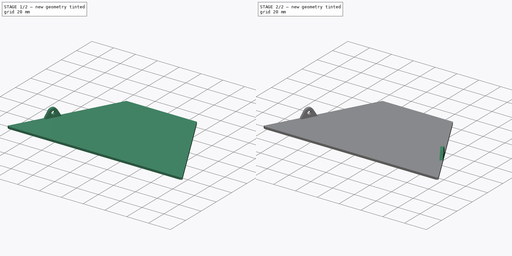
[diagram: build sequence overview — one tinted view per stage of 2, left to right]
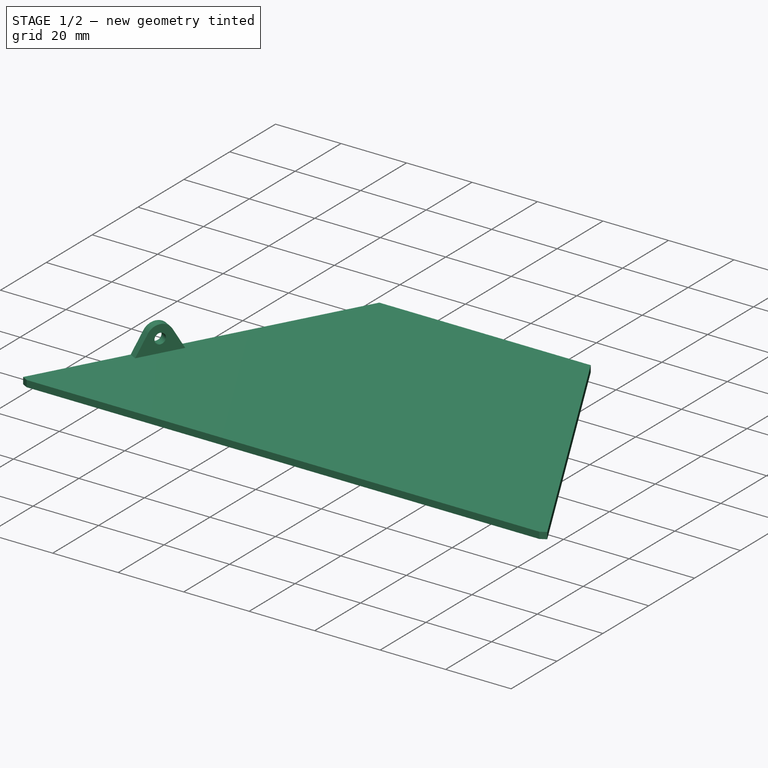
[diagram: stage 1 of 2 — iso view after this stage's code; geometry added in this stage tinted green]
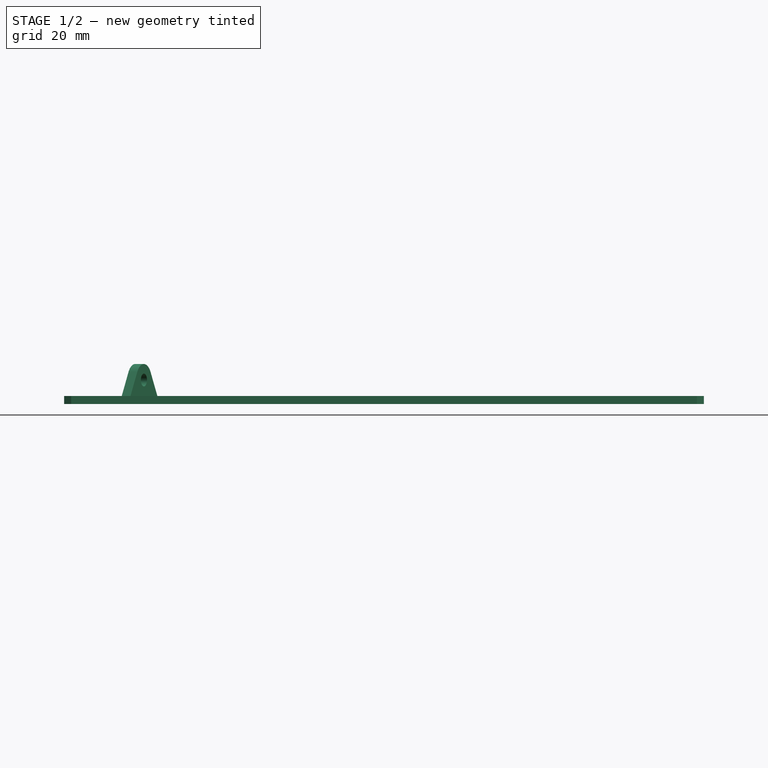
[diagram: stage 1 of 2 — front view after this stage's code; geometry added in this stage tinted green]
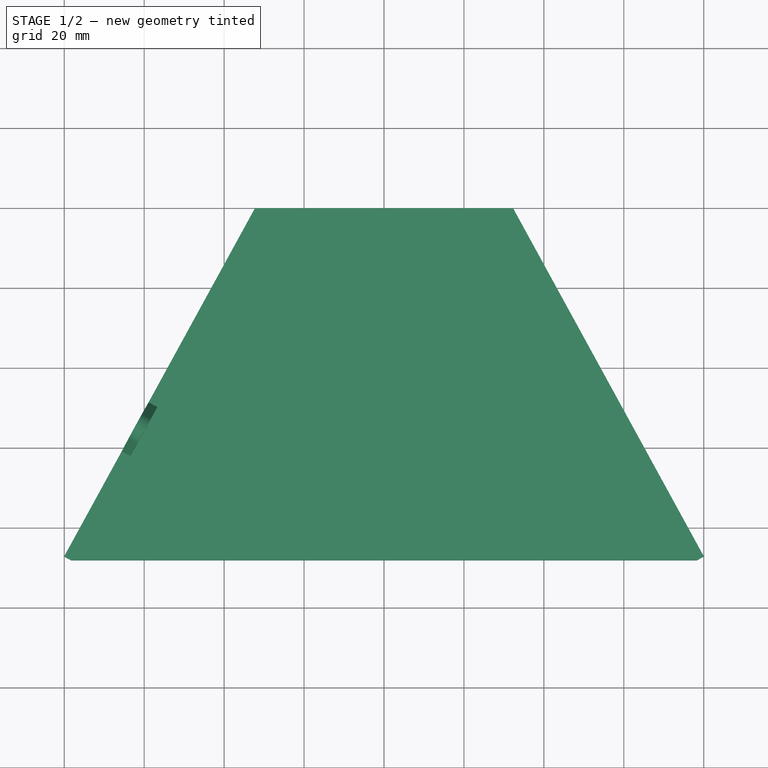
[diagram: stage 1 of 2 — top view after this stage's code; geometry added in this stage tinted green]
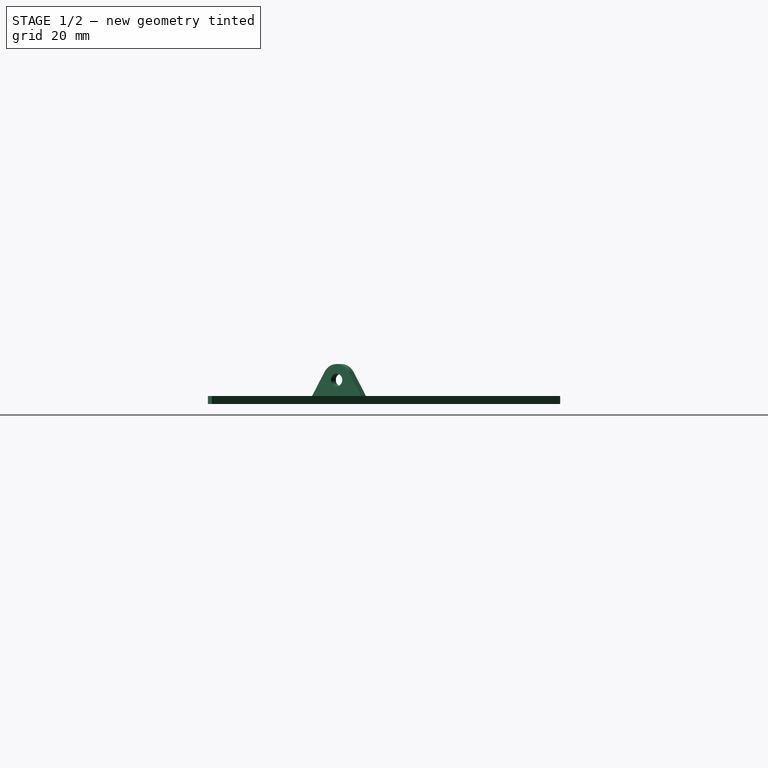
[diagram: stage 1 of 2 — right view after this stage's code; geometry added in this stage tinted green]
FCSTD DOCUMENT  (FreeCAD 0.21R33668 +26 (Git))
Label: 0_Base_Door
License: All rights reserved
LicenseURL: https://en.wikipedia.org/wiki/All_rights_reserved
objects: Sketcher::SketchObject×2, PartDesign::Pad×2, PartDesign::Mirrored×1, PartDesign::Body×1
note: 8 computed .brp shape members not serialized (recipe doc carries the construction recipe); baked Part::Feature solids carry a one-line shape summary decoded from their .brp

FEATURE [Sketcher::SketchObject] Sketch
  FullyConstrained = true
  MapMode = 5
  Support = -> [XY_Plane]
  sketch-geometry (11):
    g0: LineSegment StartX=-30 StartY=0 StartZ=0 EndX=30 EndY=0 EndZ=0
    g1: LineSegment StartX=30 StartY=0 StartZ=0 EndX=85 EndY=-100.4 EndZ=0
    g2: LineSegment StartX=85 StartY=-100.4 StartZ=0 EndX=-85 EndY=-100.4 EndZ=0
    g3: LineSegment StartX=-85 StartY=-100.4 StartZ=0 EndX=-30 EndY=0 EndZ=0
    g4: LineSegment StartX=-80.0279 StartY=-87.1607 StartZ=0 EndX=-32.2804 EndY=0 EndZ=0
    g5: LineSegment StartX=-32.2804 StartY=0 StartZ=0 EndX=-30 EndY=0 EndZ=0
    g6: LineSegment StartX=30 StartY=0 StartZ=0 EndX=32.2804 EndY=0 EndZ=0
    g7: LineSegment StartX=32.2804 StartY=0 StartZ=0 EndX=80.0279 EndY=-87.1607 EndZ=0
    g8: LineSegment StartX=-80.0279 StartY=-87.1607 StartZ=0 EndX=-78.2738 EndY=-88.1216 EndZ=0
    g9: LineSegment StartX=80.0279 StartY=-87.1607 StartZ=0 EndX=78.2738 EndY=-88.1216 EndZ=0
    g10: LineSegment StartX=78.2738 StartY=-88.1216 StartZ=0 EndX=-78.2738 EndY=-88.1216 EndZ=0
  constraints (29):
    c: Coincident(g1,g0)
    c: Coincident(g2,g1)
    c: Coincident(g3,g2)
    c: Coincident(g3,g0)
    c: Symmetric(g2,g1,g-2)
    c: DistanceX(g0,g0) = 60
    c: DistanceY(g2,g0) = 100.4
    c: DistanceX(g2,g2) = 170
    c: Equal(g3,g1)
    c: PointOnObject(g-1,g0)
    c: Horizontal(g0)
    c: PointOnObject(g4,g-1)
    c: Coincident(g5,g0)
    c: Coincident(g5,g4)
    c: Coincident(g6,g0)
    c: Symmetric(g4,g6,g-2)
    c: Coincident(g7,g6)
    c: Symmetric(g7,g4,g-2)
    c: Coincident(g8,g4)
    c: PointOnObject(g8,g3)
    c: Coincident(g9,g7)
    c: PointOnObject(g9,g1)
    c: Coincident(g10,g8)
    c: Horizontal(g10)
    c: Perpendicular(g8,g3)
    c: Perpendicular(g4,g8)
    c: Distance(g8,g2) = 14
    c: Distance(g8) = 2
    c: Coincident(g10,g9)
FEATURE [PartDesign::Pad] Pad
  Direction = (0,0,1)
  Length = 2
  Length2 = 10
  Profile = -> Sketch
  ReferenceAxis = -> Sketch [N_Axis]
  Type = 0
FEATURE [Sketcher::SketchObject] Sketch001  label="Bracket sketch"
  ExternalGeometry = -> [Pad]
  FullyConstrained = true
  MapMode = 5
  Placement = pos=(-24.8293,13.6017,0) rot=(-0.386367,0.652197,0.652197;3.87899rad)
  Support = -> [Pad]
  sketch-geometry (5):
    g0: LineSegment StartX=84.891 StartY=2 StartZ=0 EndX=70.891 EndY=2 EndZ=0
    g1: LineSegment StartX=84.891 StartY=2 StartZ=0 EndX=81.3372 EndY=8.03077 EndZ=0
    g2: LineSegment StartX=70.891 StartY=2 StartZ=0 EndX=74.4449 EndY=8.03077 EndZ=0
    g3: ArcOfCircle CenterX=77.891 CenterY=6 CenterZ=0 NormalX=0 NormalY=0 NormalZ=1 AngleXU=0 Radius=4 StartAngle=0.532504 EndAngle=2.60909
    g4: Circle CenterX=77.891 CenterY=6 CenterZ=0 NormalX=0 NormalY=0 NormalZ=1 AngleXU=0 Radius=1.6
  constraints (13):
    c: Horizontal(g0)
    c: DistanceX(g0,g0) = 14
    c: Coincident(g1,g0)
    c: Coincident(g2,g0)
    c: Tangent(g3,g2) = 1.5708
    c: Tangent(g3,g1) = -1.5708
    c: DistanceY(g0,g3) = 4
    c: Radius(g3) = 4
    c: Horizontal(g2,g1)
    c: Diameter(g4) = 3.2
    c: Coincident(g4,g3)
    c: DistanceX(g0,g-3) = 30
    c: PointOnObject(g0,g-3)
FEATURE [PartDesign::Pad] Pad001  label="Left bracket"
  BaseFeature = -> Pad
  Direction = (-0.877026,0.480443,2e-16)
  Length = 2.5
  Length2 = 10
  Profile = -> Sketch001
  ReferenceAxis = -> Sketch001 [N_Axis]
  Reversed = true
  Type = 0
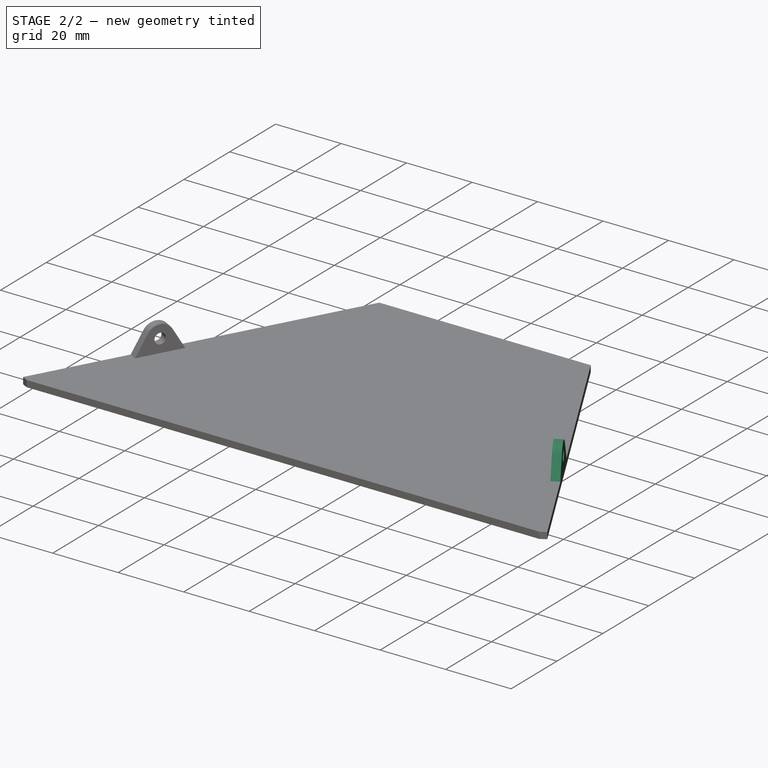
[diagram: stage 2 of 2 — iso view after this stage's code; geometry added in this stage tinted green]
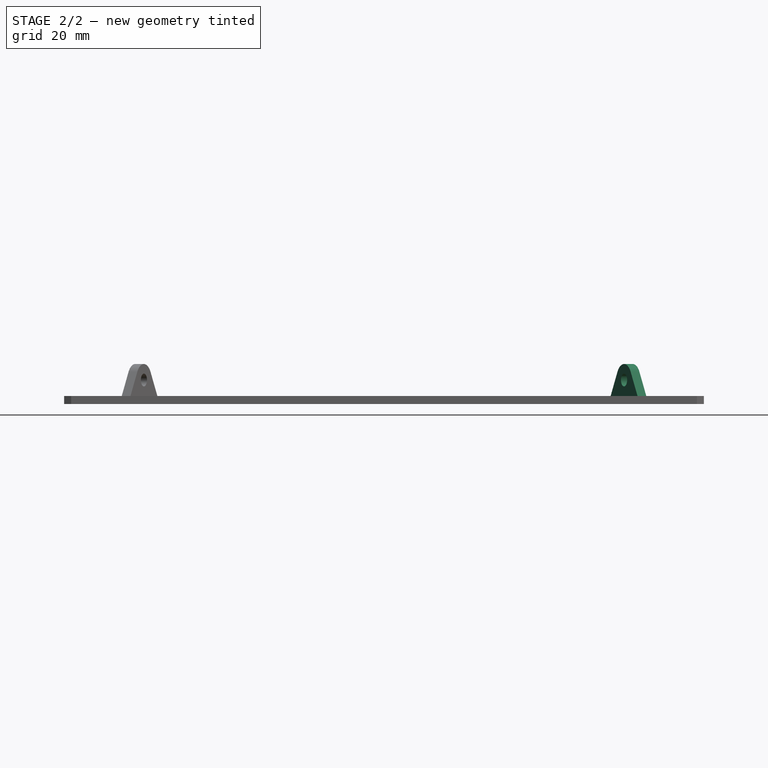
[diagram: stage 2 of 2 — front view after this stage's code; geometry added in this stage tinted green]
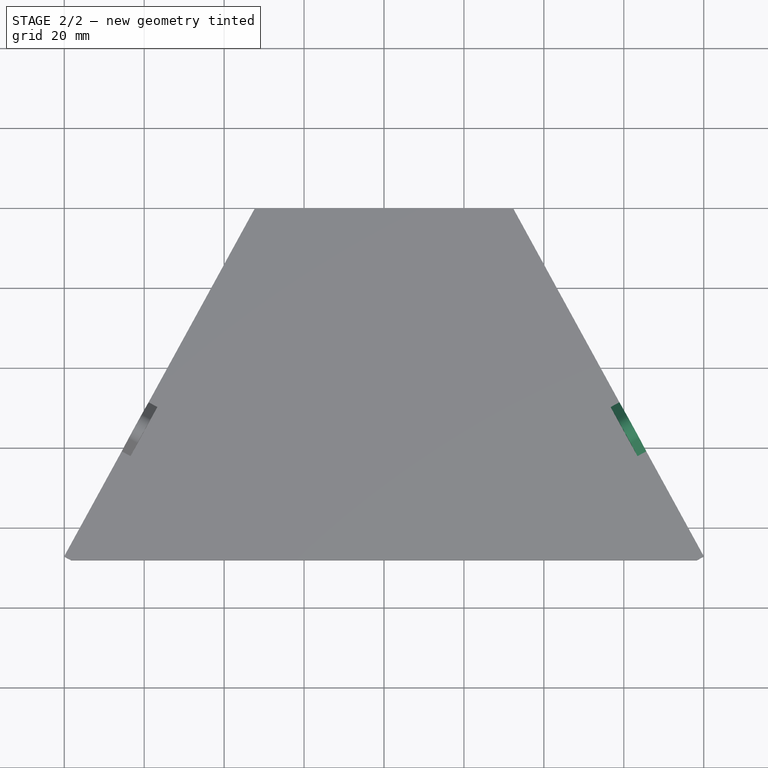
[diagram: stage 2 of 2 — top view after this stage's code; geometry added in this stage tinted green]
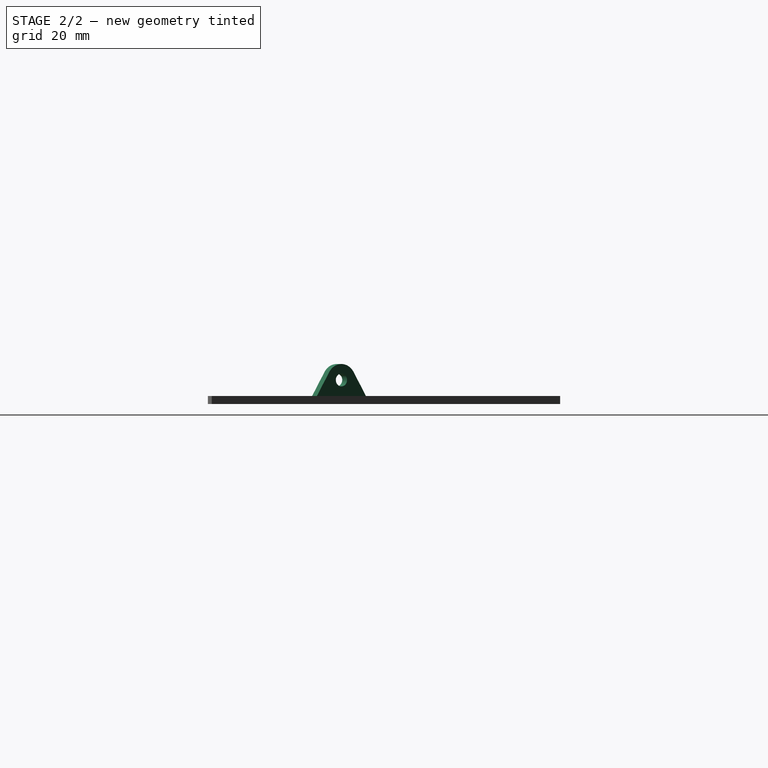
[diagram: stage 2 of 2 — right view after this stage's code; geometry added in this stage tinted green]
FEATURE [PartDesign::Mirrored] Mirrored  label="Right bracket"
  BaseFeature = -> Pad001
  MirrorPlane = -> YZ_Plane
  Originals = -> [Pad001]
FEATURE [PartDesign::Body] Body
  Group = -> [Sketch,Pad,Sketch001,Pad001,Mirrored]
  Origin = -> Origin
  Tip = -> Mirrored
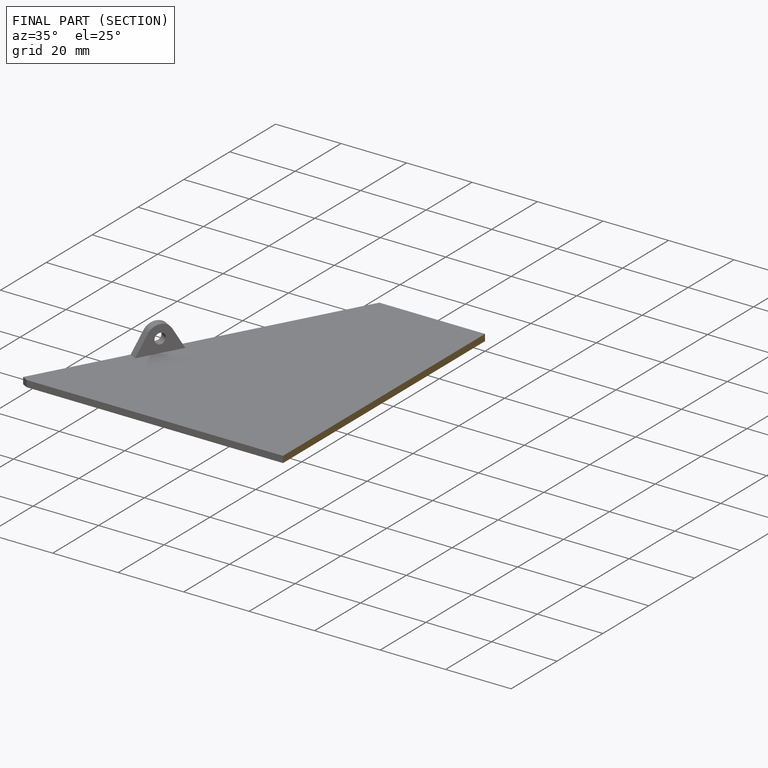
[diagram: finished part — half-section view (interior)]
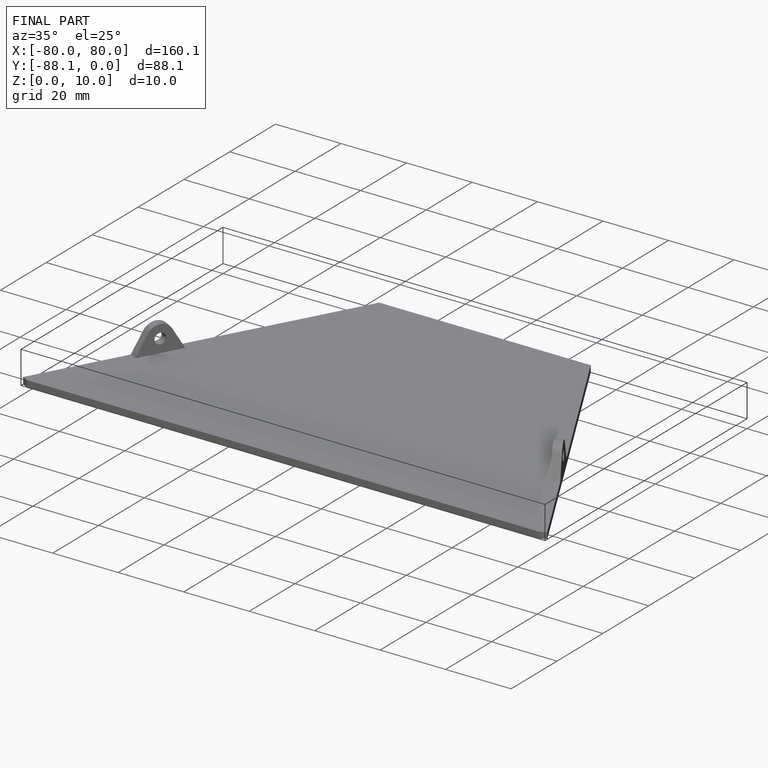
[diagram: finished part — iso view with bounding-box wireframe]
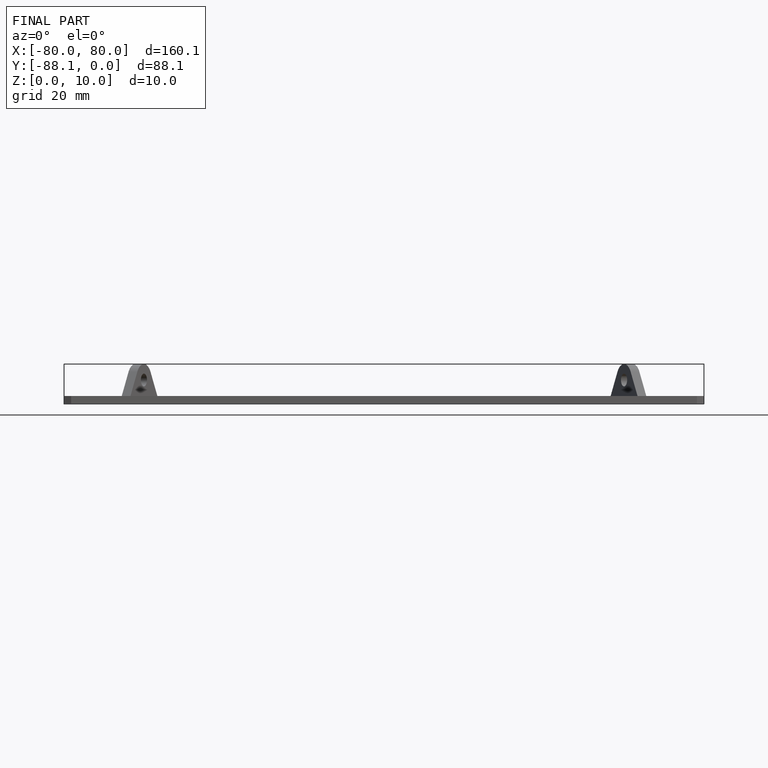
[diagram: finished part — front view with bounding-box wireframe]
